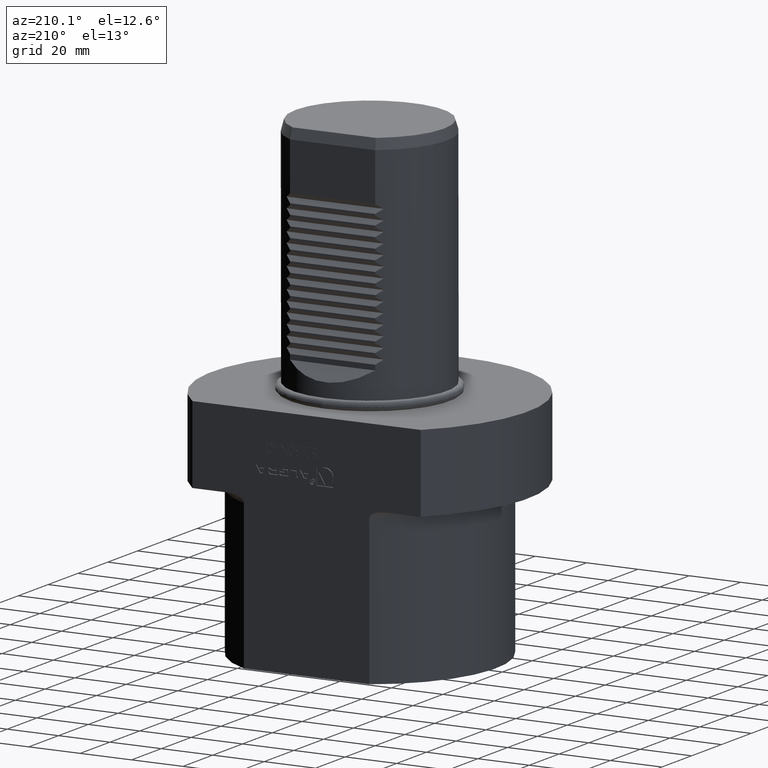
[diagram: clean part render]
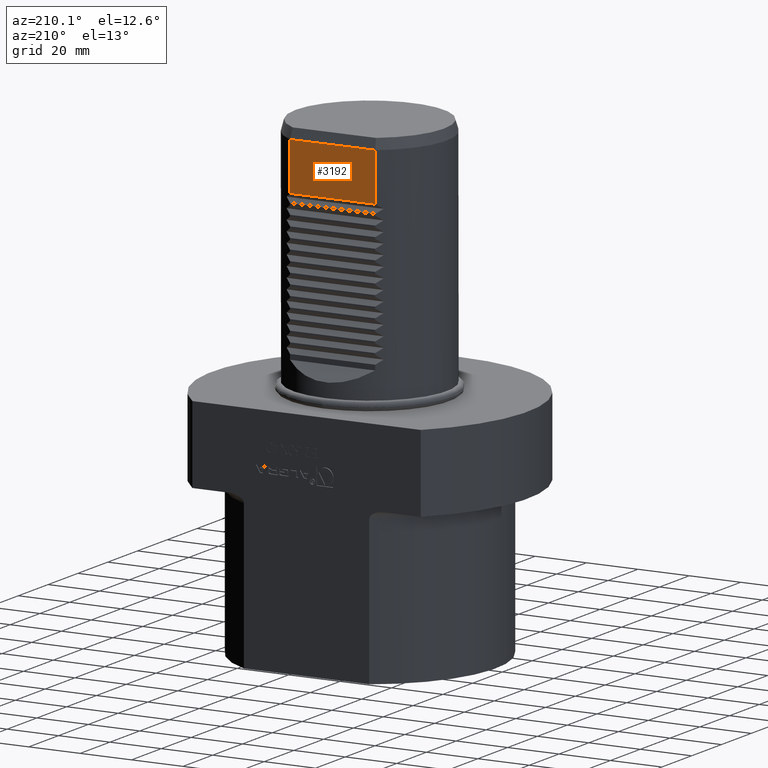
[diagram: same view with one face highlighted and labeled with its STEP entity id]
A machine part, auxiliary view. The second image highlights one B-rep face of the part: STEP entity #3192.
In plain terms, the highlighted planar face has unit normal (-0, -1, 0).
Its self-contained STEP definition (entity closure, byte-faithful):
#461 = VECTOR ( 'NONE', #1812, 1000.000000000000000 ) ;
#667 = CARTESIAN_POINT ( 'NONE',  ( 16.58312395177700083, 25.00000000000000000, -1.042600341045870012E-14 ) ) ;
#906 = CARTESIAN_POINT ( 'NONE',  ( 16.58312395177710030, 25.00000000000000000, 90.00000000000000000 ) ) ;
#1021 = EDGE_CURVE ( 'NONE', #6689, #3226, #12728, .T. ) ;
#1032 = CARTESIAN_POINT ( 'NONE',  ( -16.58312395177700083, 25.00000000000000000, 4.302769414721919835E-15 ) ) ;
#1812 = DIRECTION ( 'NONE',  ( 4.440892098500630106E-16, 1.224646799147350002E-16, 1.000000000000000000 ) ) ;
#1863 = PLANE ( 'NONE',  #10671 ) ;
#2390 = VECTOR ( 'NONE', #5645, 1000.000000000000000 ) ;
#2633 = EDGE_CURVE ( 'NONE', #7817, #8819, #11386, .T. ) ;
#2820 = EDGE_LOOP ( 'NONE', ( #7685, #12457, #6838, #3096 ) ) ;
#2895 = CARTESIAN_POINT ( 'NONE',  ( 1.023755556209249838E-14, 25.00000000000000000, 14.00000000000000000 ) ) ;
#3096 = ORIENTED_EDGE ( 'NONE', *, *, #1021, .F. ) ;
#3192 = ADVANCED_FACE ( 'Defeature completata1_41', ( #9127 ), #1863, .F. ) ;
#3226 = VERTEX_POINT ( 'NONE', #6226 ) ;
#3520 = LINE ( 'NONE', #12059, #2390 ) ;
#4230 = VECTOR ( 'NONE', #10546, 1000.000000000000000 ) ;
#4908 = DIRECTION ( 'NONE',  ( -1.000000000000000000, 1.608122649676629698E-16, 0.000000000000000000 ) ) ;
#5645 = DIRECTION ( 'NONE',  ( -1.000000000000000000, 1.608122649676639805E-16, 4.440892098500630106E-16 ) ) ;
#6226 = CARTESIAN_POINT ( 'NONE',  ( -16.58312395177700083, 25.00000000000000000, 71.40000000000000568 ) ) ;
#6529 = CARTESIAN_POINT ( 'NONE',  ( -16.58312395177700083, 25.00000000000000000, 90.00000000000000000 ) ) ;
#6638 = LINE ( 'NONE', #10661, #10755 ) ;
#6689 = VERTEX_POINT ( 'NONE', #6529 ) ;
#6838 = ORIENTED_EDGE ( 'NONE', *, *, #8274, .T. ) ;
#7029 = CARTESIAN_POINT ( 'NONE',  ( 16.58312395177700083, 25.00000000000000000, 71.40000000000000568 ) ) ;
#7685 = ORIENTED_EDGE ( 'NONE', *, *, #11043, .F. ) ;
#7817 = VERTEX_POINT ( 'NONE', #7029 ) ;
#8274 = EDGE_CURVE ( 'NONE', #7817, #3226, #3520, .T. ) ;
#8819 = VERTEX_POINT ( 'NONE', #906 ) ;
#9127 = FACE_OUTER_BOUND ( 'NONE', #2820, .T. ) ;
#9352 = DIRECTION ( 'NONE',  ( -1.608122649676629698E-16, -1.000000000000000000, 4.000204360710240367E-16 ) ) ;
#10546 = DIRECTION ( 'NONE',  ( -4.440892098500630106E-16, -1.224646799147350002E-16, -1.000000000000000000 ) ) ;
#10661 = CARTESIAN_POINT ( 'NONE',  ( 4.398833551069719725E-14, 25.00000000000000000, 90.00000000000000000 ) ) ;
#10671 = AXIS2_PLACEMENT_3D ( 'NONE', #2895, #9352, #4908 ) ;
#10755 = VECTOR ( 'NONE', #12845, 1000.000000000000000 ) ;
#11043 = EDGE_CURVE ( 'NONE', #8819, #6689, #6638, .T. ) ;
#11386 = LINE ( 'NONE', #667, #461 ) ;
#12059 = CARTESIAN_POINT ( 'NONE',  ( 4.187180282596519853E-14, 25.00000000000000000, 71.40000000000000568 ) ) ;
#12457 = ORIENTED_EDGE ( 'NONE', *, *, #2633, .F. ) ;
#12728 = LINE ( 'NONE', #1032, #4230 ) ;
#12845 = DIRECTION ( 'NONE',  ( -1.000000000000000000, 1.608122649676639805E-16, 4.440892098500630106E-16 ) ) ;